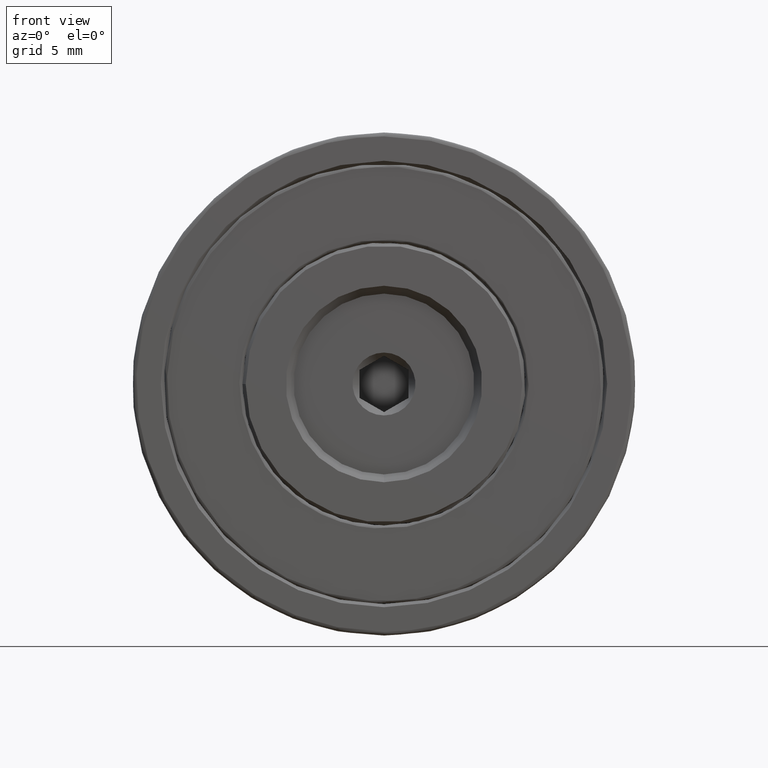
[diagram: clean part render]
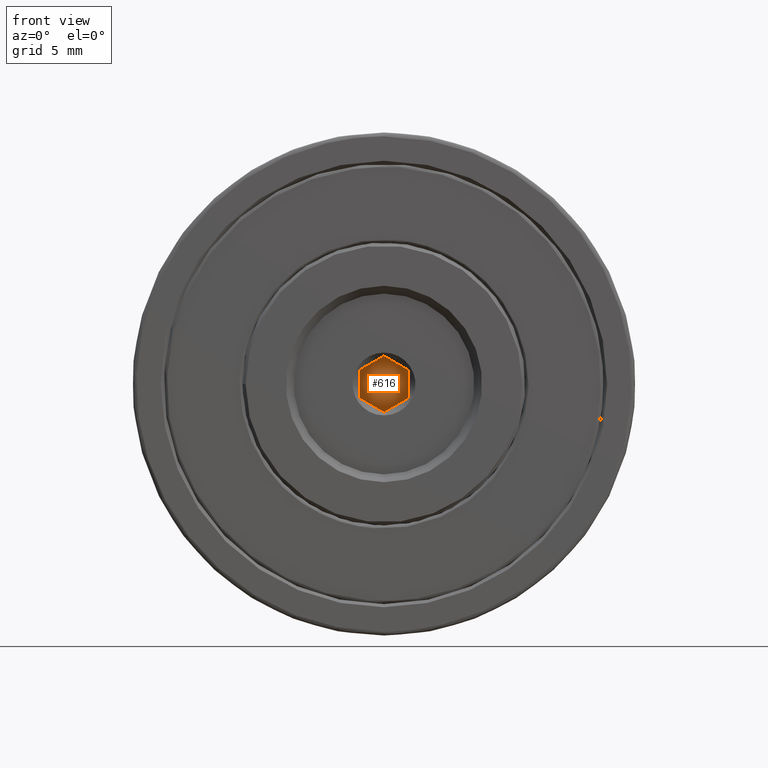
[diagram: same view with one face highlighted and labeled with its STEP entity id]
A machine part, front view. The second image highlights one B-rep face of the part: STEP entity #616.
In plain terms, the highlighted planar face has unit normal (0, -1, 0).
Its self-contained STEP definition (entity closure, byte-faithful):
#49 = VERTEX_POINT ( 'NONE', #280 ) ;
#59 = EDGE_LOOP ( 'NONE', ( #452, #397, #505, #1077, #179, #966 ) ) ;
#61 = DIRECTION ( 'NONE',  ( 0.8660254037844384856, -0.000000000000000000, -0.5000000000000003331 ) ) ;
#123 = CARTESIAN_POINT ( 'NONE',  ( 0.9692912281311333311, -1.651574736878457461, 31.10510708275608138 ) ) ;
#160 = DIRECTION ( 'NONE',  ( -0.000000000000000000, -0.000000000000000000, -1.000000000000000000 ) ) ;
#167 = LINE ( 'NONE', #548, #838 ) ;
#168 = VECTOR ( 'NONE', #873, 1000.000000000000114 ) ;
#179 = ORIENTED_EDGE ( 'NONE', *, *, #1010, .T. ) ;
#180 = CARTESIAN_POINT ( 'NONE',  ( -0.5807087718688666023, -1.651574736878457461, 32.00000000000000000 ) ) ;
#249 = DIRECTION ( 'NONE',  ( -1.211544031239643760E-16, -0.000000000000000000, 1.000000000000000000 ) ) ;
#277 = LINE ( 'NONE', #482, #168 ) ;
#280 = CARTESIAN_POINT ( 'NONE',  ( -0.5807087718688666023, -1.651574736878457461, 33.78978583448784434 ) ) ;
#307 = AXIS2_PLACEMENT_3D ( 'NONE', #180, #1153, #959 ) ;
#325 = VECTOR ( 'NONE', #249, 1000.000000000000000 ) ;
#338 = VERTEX_POINT ( 'NONE', #757 ) ;
#355 = LINE ( 'NONE', #1220, #1040 ) ;
#397 = ORIENTED_EDGE ( 'NONE', *, *, #531, .T. ) ;
#426 = DIRECTION ( 'NONE',  ( -0.8660254037844385966, -0.000000000000000000, 0.5000000000000001110 ) ) ;
#448 = CARTESIAN_POINT ( 'NONE',  ( -2.130708771868866869, -1.651574736878457461, 31.10510708275608138 ) ) ;
#452 = ORIENTED_EDGE ( 'NONE', *, *, #810, .T. ) ;
#482 = CARTESIAN_POINT ( 'NONE',  ( -0.5807087718688671574, -1.651574736878457461, 30.21021416551216277 ) ) ;
#505 = ORIENTED_EDGE ( 'NONE', *, *, #652, .T. ) ;
#522 = EDGE_CURVE ( 'NONE', #49, #1012, #167, .T. ) ;
#531 = EDGE_CURVE ( 'NONE', #845, #338, #355, .T. ) ;
#544 = LINE ( 'NONE', #1125, #325 ) ;
#547 = VECTOR ( 'NONE', #426, 1000.000000000000000 ) ;
#548 = CARTESIAN_POINT ( 'NONE',  ( -0.5807087718688666023, -1.651574736878457461, 33.78978583448784434 ) ) ;
#616 = ADVANCED_FACE ( 'NONE', ( #657 ), #763, .T. ) ;
#630 = CARTESIAN_POINT ( 'NONE',  ( 0.9692912281311333311, -1.651574736878457461, 32.89489291724392217 ) ) ;
#642 = LINE ( 'NONE', #938, #1061 ) ;
#652 = EDGE_CURVE ( 'NONE', #338, #698, #277, .T. ) ;
#657 = FACE_OUTER_BOUND ( 'NONE', #59, .T. ) ;
#698 = VERTEX_POINT ( 'NONE', #123 ) ;
#721 = CARTESIAN_POINT ( 'NONE',  ( -2.130708771868866869, -1.651574736878457461, 32.89489291724392217 ) ) ;
#733 = CARTESIAN_POINT ( 'NONE',  ( 0.9692912281311331091, -1.651574736878457461, 32.89489291724392217 ) ) ;
#757 = CARTESIAN_POINT ( 'NONE',  ( -0.5807087718688671574, -1.651574736878457461, 30.21021416551216277 ) ) ;
#763 = PLANE ( 'NONE',  #307 ) ;
#810 = EDGE_CURVE ( 'NONE', #1012, #845, #642, .T. ) ;
#830 = DIRECTION ( 'NONE',  ( -0.8660254037844387076, -0.000000000000000000, -0.4999999999999998890 ) ) ;
#838 = VECTOR ( 'NONE', #830, 1000.000000000000000 ) ;
#845 = VERTEX_POINT ( 'NONE', #448 ) ;
#873 = DIRECTION ( 'NONE',  ( 0.8660254037844387076, -0.000000000000000000, 0.4999999999999997224 ) ) ;
#917 = LINE ( 'NONE', #733, #547 ) ;
#938 = CARTESIAN_POINT ( 'NONE',  ( -2.130708771868866869, -1.651574736878457461, 32.89489291724392217 ) ) ;
#959 = DIRECTION ( 'NONE',  ( 0.000000000000000000, -0.000000000000000000, -1.000000000000000000 ) ) ;
#966 = ORIENTED_EDGE ( 'NONE', *, *, #522, .T. ) ;
#1010 = EDGE_CURVE ( 'NONE', #1057, #49, #917, .T. ) ;
#1012 = VERTEX_POINT ( 'NONE', #721 ) ;
#1040 = VECTOR ( 'NONE', #61, 1000.000000000000114 ) ;
#1057 = VERTEX_POINT ( 'NONE', #630 ) ;
#1061 = VECTOR ( 'NONE', #160, 1000.000000000000000 ) ;
#1077 = ORIENTED_EDGE ( 'NONE', *, *, #1197, .T. ) ;
#1125 = CARTESIAN_POINT ( 'NONE',  ( 0.9692912281311333311, -1.651574736878457461, 31.10510708275608138 ) ) ;
#1153 = DIRECTION ( 'NONE',  ( 0.000000000000000000, -1.000000000000000000, 0.000000000000000000 ) ) ;
#1197 = EDGE_CURVE ( 'NONE', #698, #1057, #544, .T. ) ;
#1220 = CARTESIAN_POINT ( 'NONE',  ( -2.130708771868866869, -1.651574736878457461, 31.10510708275608138 ) ) ;